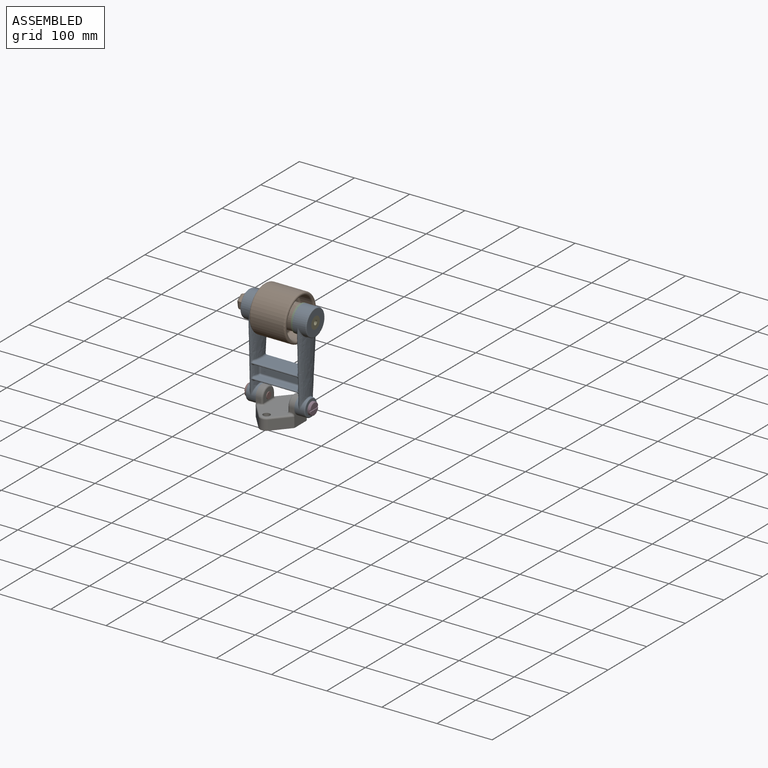
[diagram: assembled view]
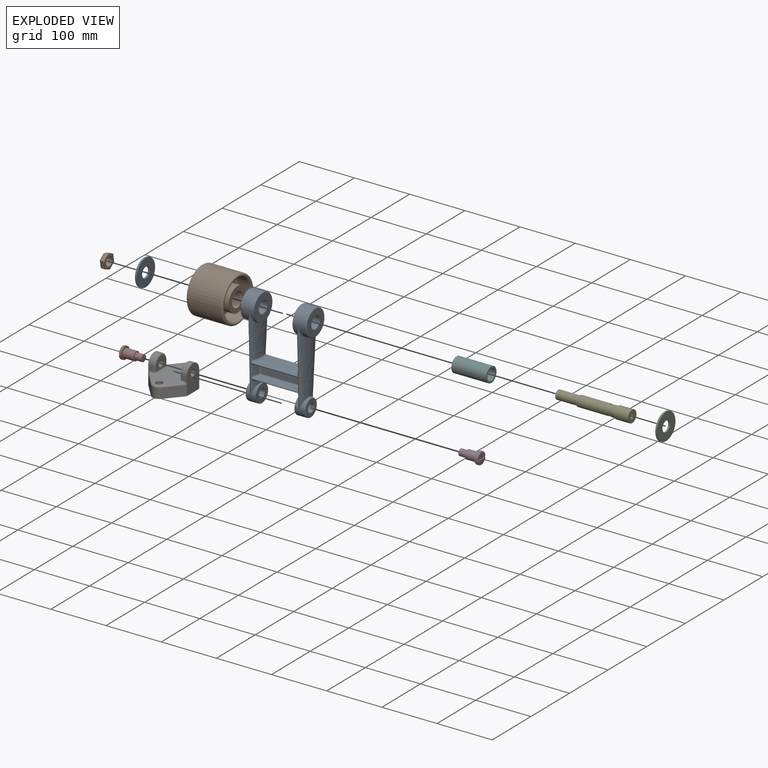
[diagram: exploded view]
GUIDED TOUR — MATED ASSEMBLY (Onshape document 57320ba3e4b0c309246d206c, AutoMate assembly 57320ba3e4b0c309246d206c_12dce975a0e8059eccebc991_d1e6be0f16bb16d82fe789ac_default)

This assembly has 10 components, labeled P0..P9 below (a component is one placed occurrence of a part; the same part can appear more than once), held together by 9 mates. A mate is a constraint between two components; its type names the relative motion it leaves free:
  FASTENED — locks the two components together rigidly (no relative motion),
  REVOLUTE — leaves rotation about the listed axis free (a hinge).
Axis/direction vectors are unit vectors and 'through' points are millimeter coordinates, both in the assembly's world frame.

MATES
  1. REVOLUTE "Revolute 1": P7 <-> P8, axis (-1.000, 0.000, 0.000) through (-33.93, 37.71, 30.65) mm
  2. REVOLUTE "Revolute 2": P9 <-> P5, axis (-1.000, 0.000, 0.000) through (33.07, 40.81, 170.61) mm
  3. REVOLUTE "Revolute 3": P2 <-> P9, axis (-1.000, 0.000, 0.000) through (33.07, 40.81, 170.61) mm
  4. REVOLUTE "Revolute 6": P4 <-> P8, axis (-1.000, 0.000, 0.000) through (61.07, 40.81, 170.61) mm
  5. FASTENED "Fastened 3": P1 <-> P4, direction (1.000, 0.000, 0.000) through (-72.93, 40.81, 170.61) mm
  6. FASTENED "Fastened 1": P7 <-> P6, direction (1.000, 0.000, 0.000) through (-33.93, 37.71, 30.65) mm
  7. REVOLUTE "Revolute 5": P2 <-> P8, axis (1.000, 0.000, 0.000) through (36.07, 40.81, 170.61) mm
  8. FASTENED "Fastened 2": P3 <-> P6, direction (-1.000, 0.000, 0.000) through (36.07, 37.71, 30.65) mm
  9. REVOLUTE "Revolute 4": P0 <-> P9, axis (1.000, 0.000, 0.000) through (-29.93, 40.81, 170.61) mm

ASSEMBLY ORDER
  1. P8 — the base component [order heuristic]
  2. P2 — core [order heuristic]
  3. P4 — core [order heuristic]
  4. P7 — core [order heuristic]
  5. P6 — core [order heuristic]
  6. P5 — core [order heuristic]
  7. P9 — core [order heuristic]
  8. P0 — core [order heuristic]
  9. P1 [order verified]
  10. P3 [order verified]
Order-tag legend:
  [order verified] — this step's position reverses a verified removal order: the component was checked to insert without passing through the ones already placed.
  [order heuristic] — the first 8 components form the assembly's core: parts whose collision-free extraction could not be verified, listed in mate-graph order.

Of the 10 components, 5 carry the full construction recipe — the FeatureScript program that regenerates the part's solid from scratch; the rest are supplied as boundary geometry only.
Each toured component is shown spotlighted twice — in the assembled view, then in the exploded view, where a leader line traces a displaced component back to its assembled socket (saturated green if recipe-attached, orange if geometry-only; every other component desaturated gray) — followed by its recipe or geometry summary and the mates that hold it.
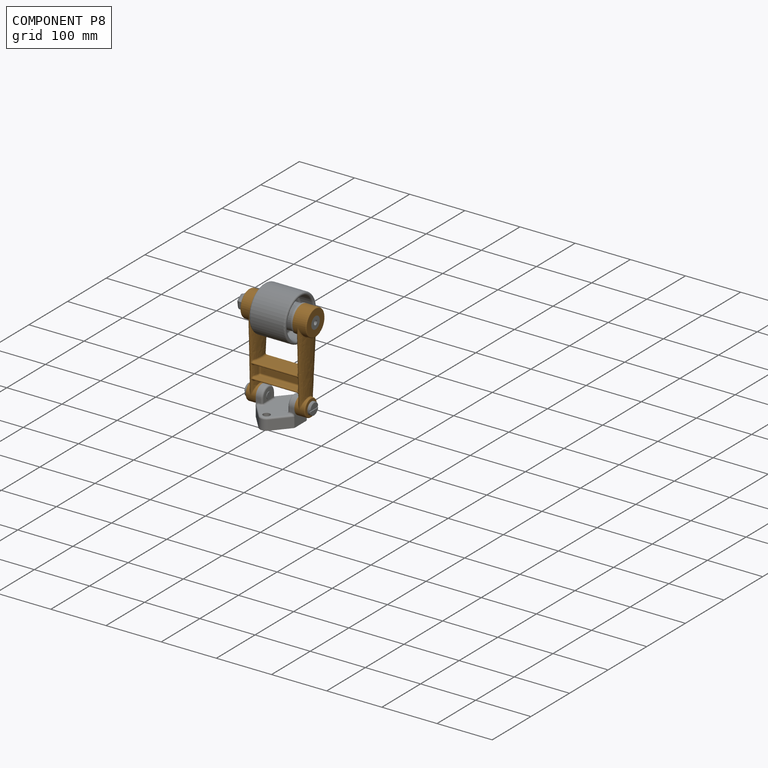
[diagram: component P8 — assembled]
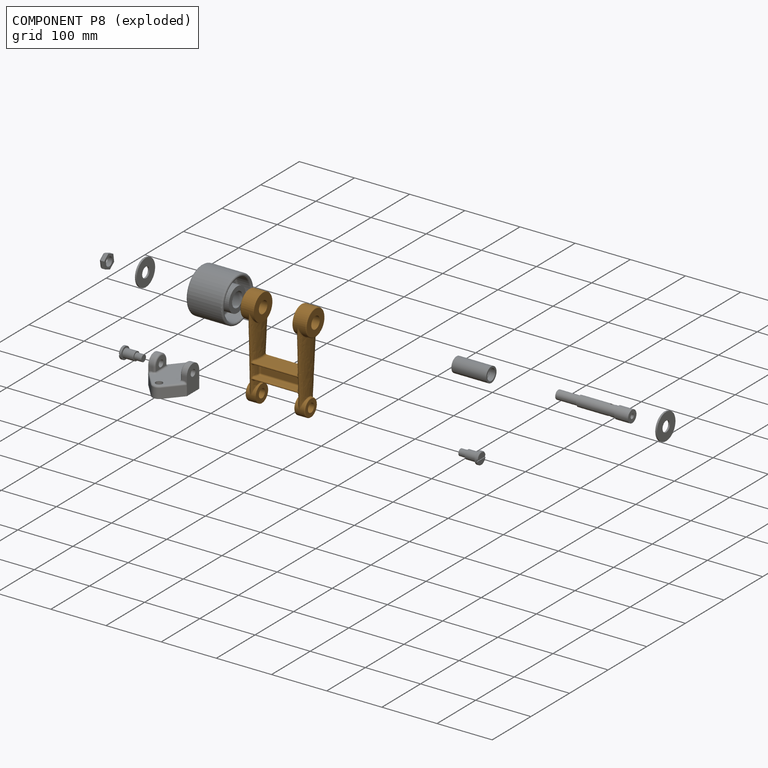
[diagram: component P8 — exploded]
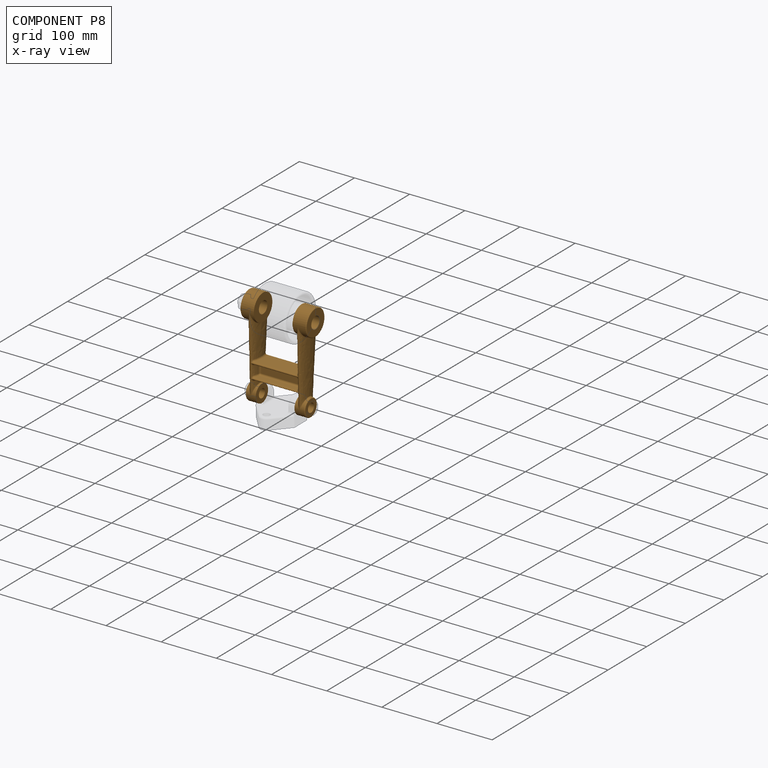
[diagram: component P8 — x-ray view]
COMPONENT P8 — geometry summary (no construction recipe available for this part):
  bounding box: 183.3 x 120.0 x 52.0 mm
  B-rep topology: 1 solid, 86 faces, 408 edges
  volume: 200852 mm^3 (18% of its bounding box)
  symmetry: 2-fold rotationally symmetric about the z axis; mirror-symmetric across its x mid-plane, y mid-plane
Held by: REVOLUTE mate "Revolute 1" to P7; REVOLUTE mate "Revolute 6" to P4; REVOLUTE mate "Revolute 5" to P2.
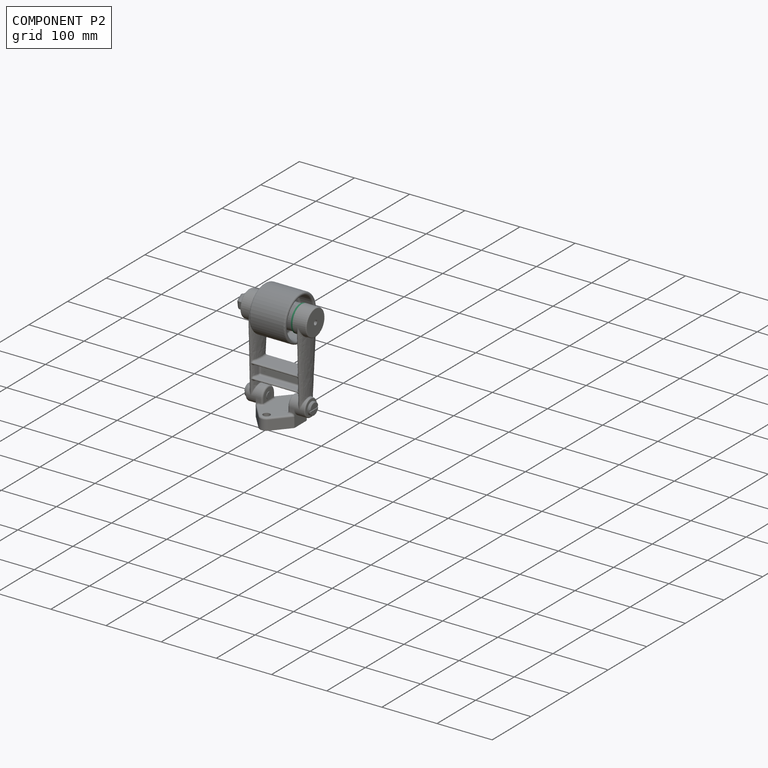
[diagram: component P2 — assembled]
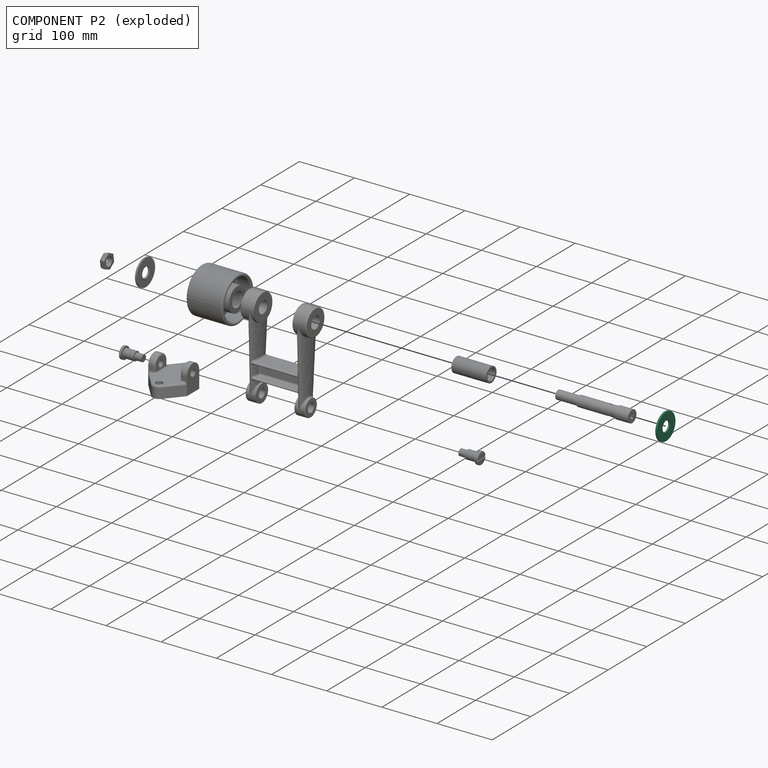
[diagram: component P2 — exploded]
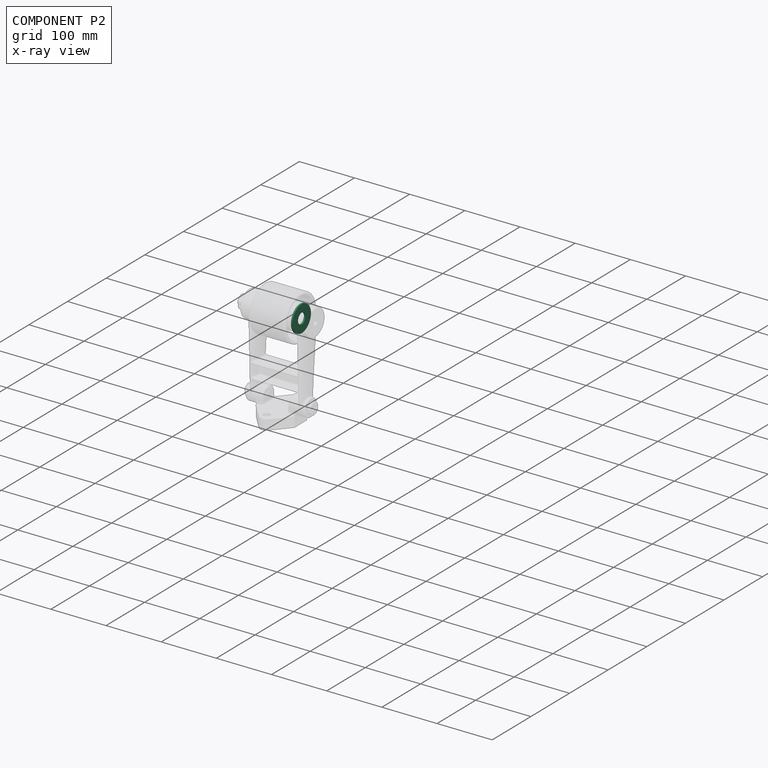
[diagram: component P2 — x-ray view]
COMPONENT P2 — same part as P0 (CADFS 00144085); its construction recipe is shown at P0.
Held by: REVOLUTE mate "Revolute 3" to P9; REVOLUTE mate "Revolute 5" to P8.
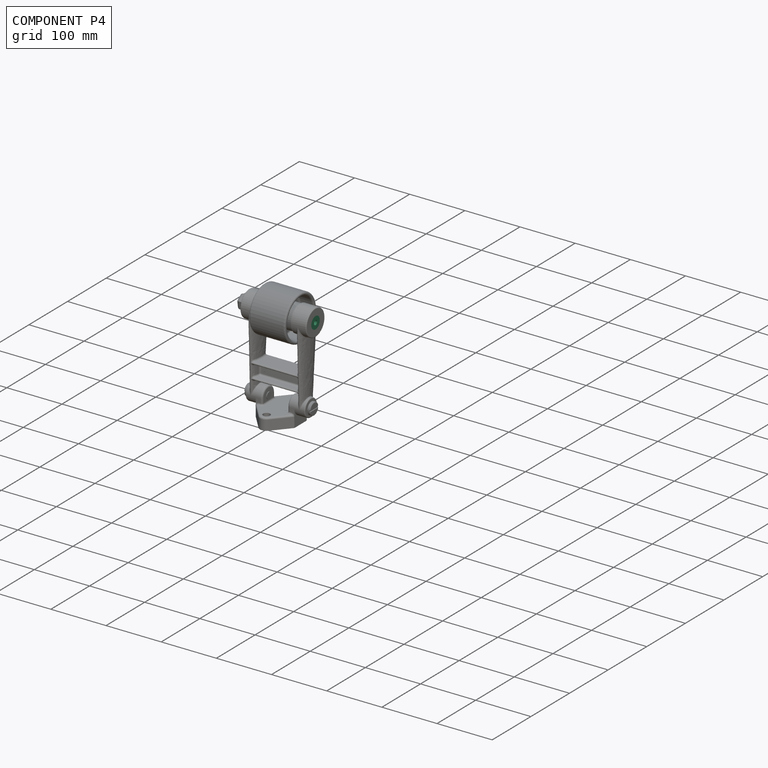
[diagram: component P4 — assembled]
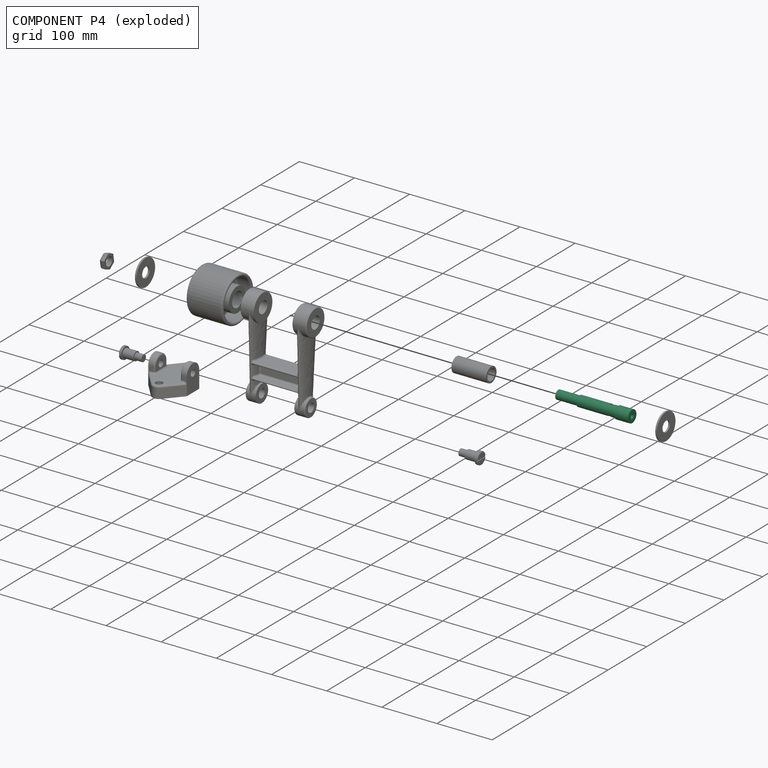
[diagram: component P4 — exploded]
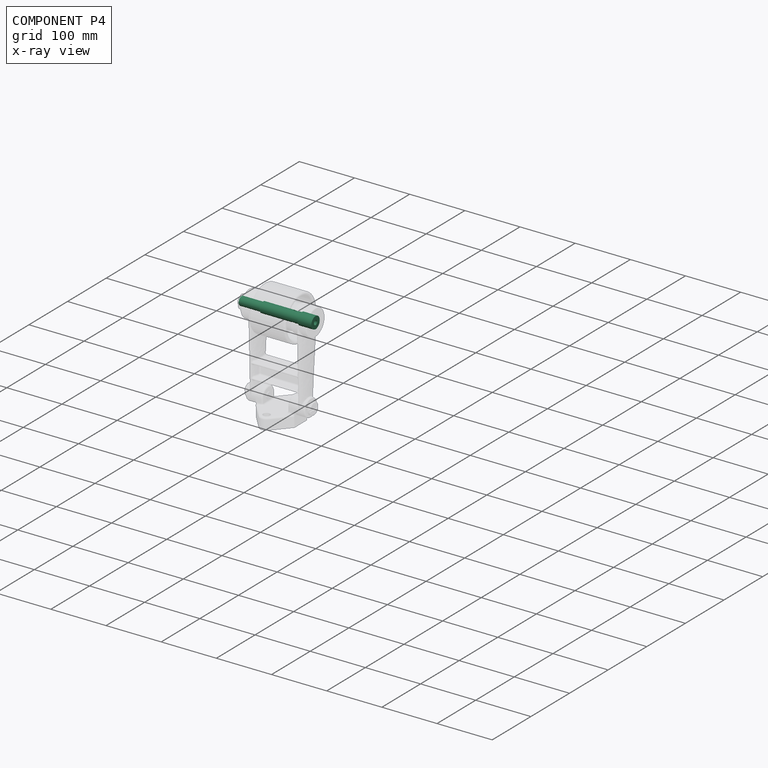
[diagram: component P4 — x-ray view]
COMPONENT P4 — recipe-attached (CADFS 00150792, mesh-verified: the recipe's output STEP matches this component's geometry to below the mesh-comparison resolution (tessellation chordal tolerance ~0.206 mm)).
Held by: REVOLUTE mate "Revolute 6" to P8; FASTENED mate "Fastened 3" to P1.
Construction recipe (FeatureScript — the CAD program that rebuilds this solid; sketch coordinates are in the units given by the * unit suffixes, e.g. mm):

FeatureScript 1511;
import(path : "onshape/std/geometry.fs", version : "1511.0");
import(path : "onshape/std/common.fs", version : "1511.0");
const mm = millimeter;
const VERTEX = EntityType.VERTEX;
const EDGE = EntityType.EDGE;
const FACE = EntityType.FACE;
const BODY = EntityType.BODY;
function v(x, y){return vector(x, y);}
function OD(order){return orderDisambiguation(order);}
function OSD(set){return originalSetDisambiguation(set);}
function TD(topology){return topologyDisambiguation(topology);}
function TDD(query){return trueDependencyDisambiguation(query);}
function sQuery(a, b, c) {return sketchEntityQuery(a, b, c);}

annotation { "Feature Type Name" : "Feature", "Feature Type Description" : "" }
export const myFeature = defineFeature(function(context is Context, id is Id, definition is map)
    precondition{}
    {
        {
            var Q0;
            Q0=qCreatedBy(makeId("Right.planeOp"),FACE);
            var sketch = newSketch(context, id + "F0", { "sketchPlane" : qUnion([Q0])});
            skCircle(sketch, "E0", {"center": v(0, 0) * mm, "radius": 4.15 * mm});
            skCircle(sketch, "E1", {"center": v(0, 0) * mm, "radius": 11 * mm});
            skSolve(sketch);
        }
        {
            var Q0;
            Q0=qSketchRegion(id+"F0",true);
            extrude(context, id + "F1", {"entities" : qUnion([Q0]), "oppositeDirection" : true, "depth" : 25 * mm});
        }
        {
            var Q0;
            Q0=makeQuery(id+"F1.opExtrude","CAP_FACE",FACE,{"disambiguationData":[OSD([sQuery(id+"F0.wireOp",EDGE,"E0"),sQuery(id+"F0.wireOp",EDGE,"E1")])],"isStart":true});
            var sketch = newSketch(context, id + "F2", { "sketchPlane" : qUnion([Q0])});
            skCircle(sketch, "E2", {"center": v(0, 0) * mm, "radius": 9.5 * mm});
            skSolve(sketch);
        }
        {
            var Q0;
            Q0=qSketchRegion(id+"F2",true);
            extrude(context, id + "F3", {"entities" : qUnion([Q0]), "operationType" : NewBodyOperationType.ADD, "depth" : 70 * mm});
        }
        {
            var Q0;
            Q0=qCreatedBy(makeId("Origin.pointOp"),VERTEX);
            var Q1;
            Q1=qCreatedBy(makeId("Top.planeOp"),FACE);
            cPlane(context, id + "F4", {"entities" : qUnion([Q0, Q1]), "cplaneType" : CPlaneType.PLANE_POINT, "offset" : 25 * mm, "width" : 150 * mm, "height" : 150 * mm});
        }
        {
            var Q0;
            Q0=qCreatedBy(id+"F4.planeOp",FACE);
            var sketch = newSketch(context, id + "F5", { "sketchPlane" : qUnion([Q0])});
            skCircle(sketch, "E3", {"center": v(12, 0) * mm, "radius": 4.15 * mm});
            skSolve(sketch);
        }
        {
            var Q0;
            Q0=qSketchRegion(id+"F5",true);
            extrude(context, id + "F6", {"entities" : qUnion([Q0]), "operationType" : NewBodyOperationType.REMOVE, "endBound" : BoundingType.THROUGH_ALL, "oppositeDirection" : true, "depth" : 25 * mm, "hasSecondDirection" : true, "secondDirectionBound" : SecondDirectionBoundingType.THROUGH_ALL, "secondDirectionOppositeDirection" : false, "secondDirectionDepth" : 25 * mm});
        }
        {
            var Q0;
            Q0=makeQuery(id+"F3.opExtrude","CAP_FACE",FACE,{"disambiguationData":[OSD([sQuery(id+"F2.wireOp",EDGE,"E2")])],"isStart":false});
            var sketch = newSketch(context, id + "F7", { "sketchPlane" : qUnion([Q0])});
            skCircle(sketch, "E4", {"center": v(0, 0) * mm, "radius": 8 * mm});
            skSolve(sketch);
        }
        {
            var Q0;
            Q0=qSketchRegion(id+"F7",true);
            extrude(context, id + "F8", {"entities" : qUnion([Q0]), "operationType" : NewBodyOperationType.ADD, "depth" : 39 * mm});
        }
        {
            var Q0;
            Q0=makeQuery(id+"F3.opExtrude","CAP_FACE",FACE,{"disambiguationData":[OSD([sQuery(id+"F2.wireOp",EDGE,"E2")])],"isStart":true});
            extrude(context, id + "F9", {"entities" : qUnion([Q0]), "operationType" : NewBodyOperationType.REMOVE, "oppositeDirection" : true, "depth" : 19 * mm});
        }
    });
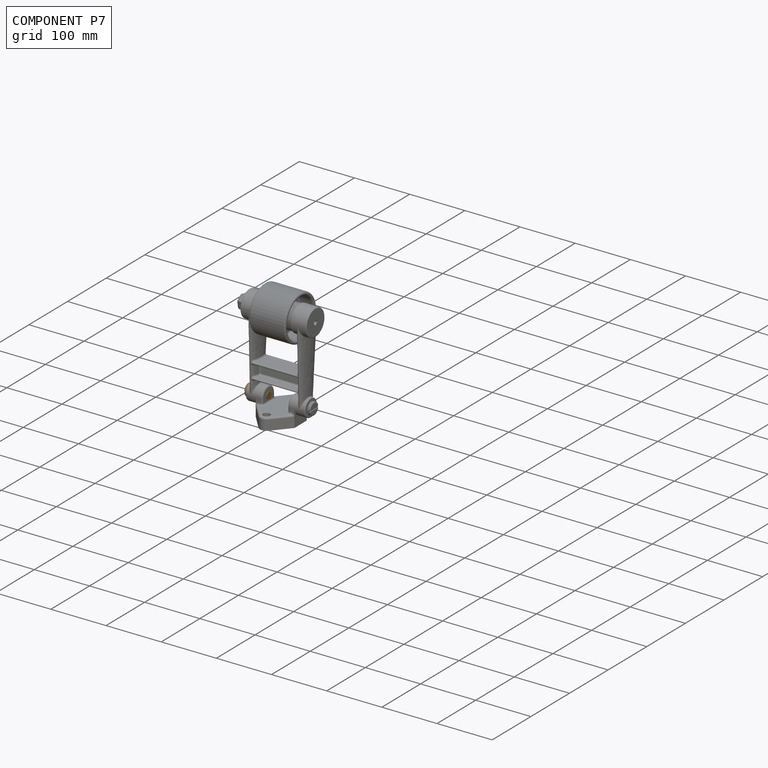
[diagram: component P7 — assembled]
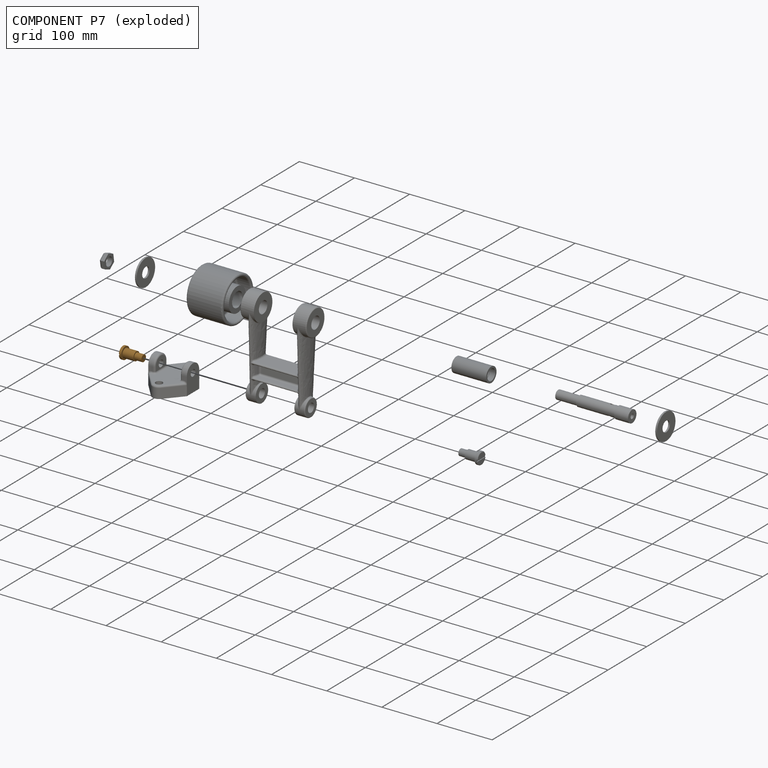
[diagram: component P7 — exploded]
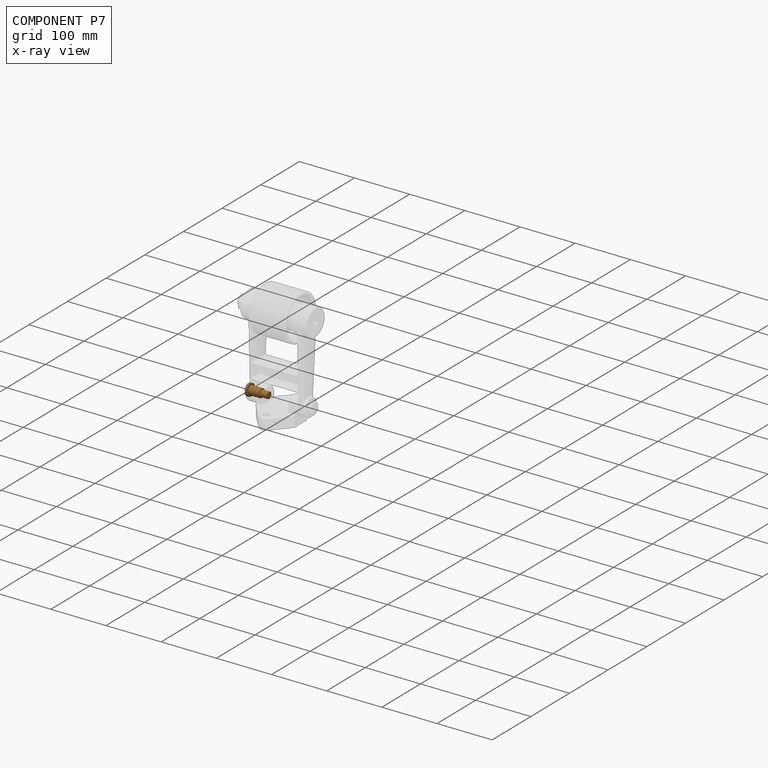
[diagram: component P7 — x-ray view]
COMPONENT P7 — geometry summary (no construction recipe available for this part):
  bounding box: 38.0 x 23.8 x 23.6 mm
  B-rep topology: 1 solid, 13 faces, 46 edges
  volume: 7264 mm^3 (34% of its bounding box)
  symmetry: 2-fold rotationally symmetric about the x axis; mirror-symmetric across its y mid-plane, z mid-plane
Held by: REVOLUTE mate "Revolute 1" to P8; FASTENED mate "Fastened 1" to P6.
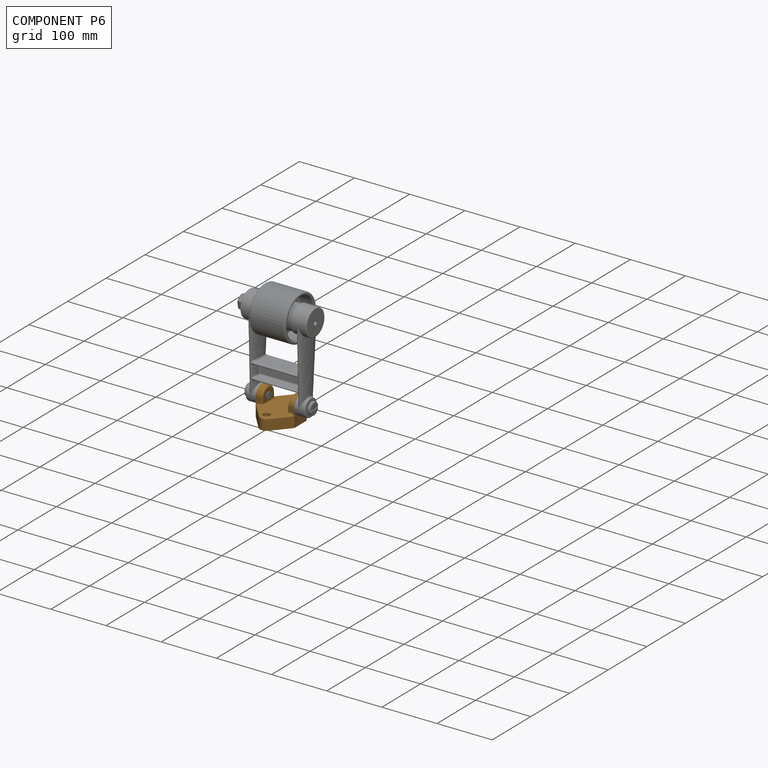
[diagram: component P6 — assembled]
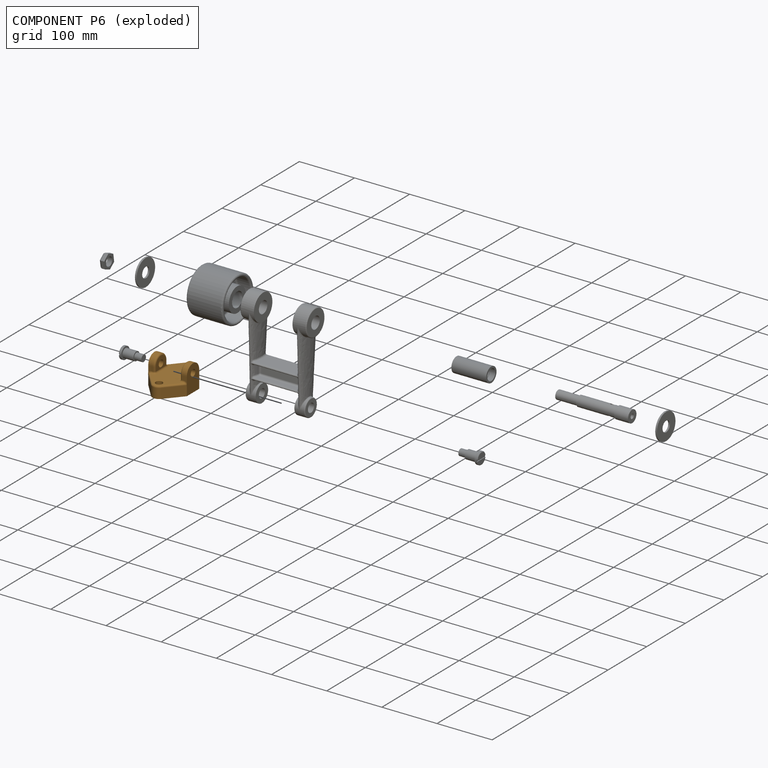
[diagram: component P6 — exploded]
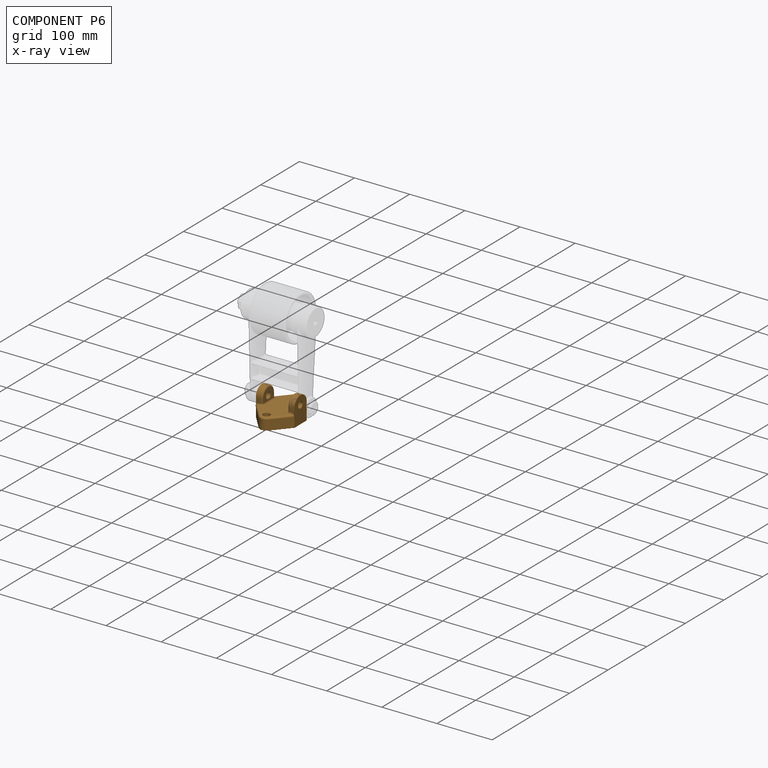
[diagram: component P6 — x-ray view]
COMPONENT P6 — geometry summary (no construction recipe available for this part):
  bounding box: 102.0 x 72.7 x 49.3 mm
  B-rep topology: 1 solid, 48 faces, 236 edges
  volume: 114271 mm^3 (31% of its bounding box)
  symmetry: 2-fold rotationally symmetric about the z axis; mirror-symmetric across its x mid-plane, y mid-plane
Held by: FASTENED mate "Fastened 1" to P7; FASTENED mate "Fastened 2" to P3.
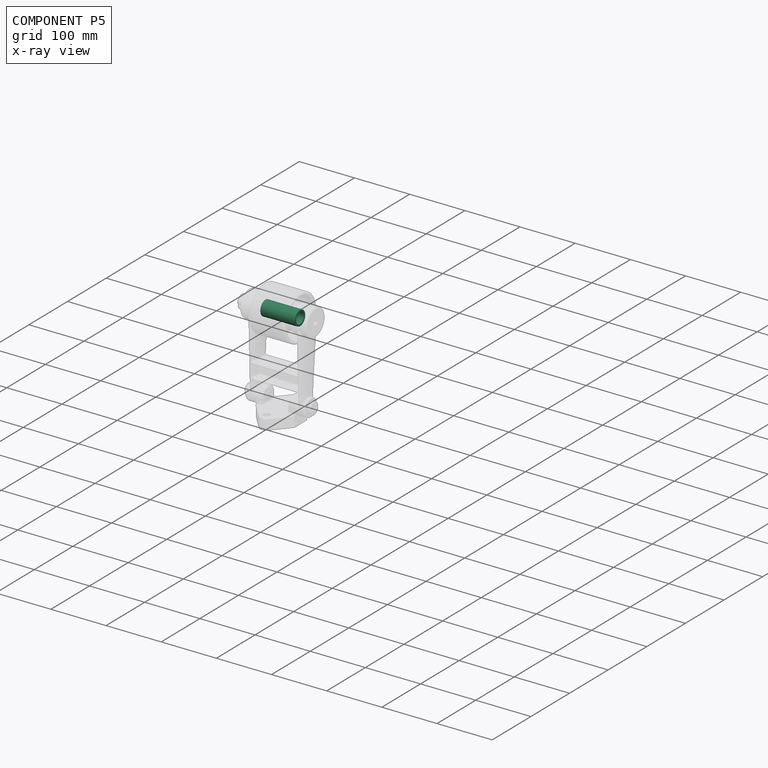
[diagram: component P5 — x-ray view]
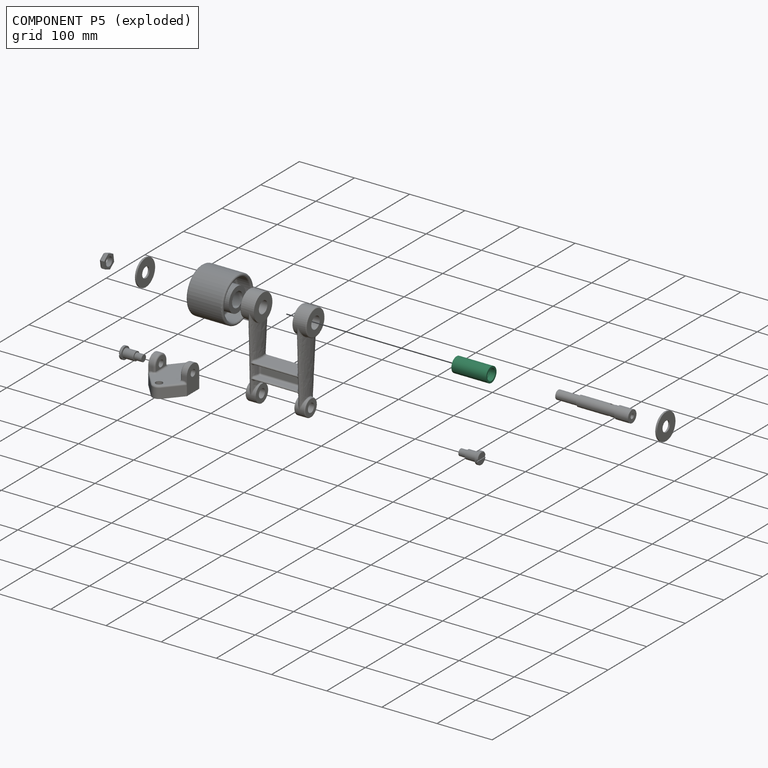
[diagram: component P5 — exploded]
COMPONENT P5 — recipe-attached (CADFS 00150793, mesh-verified: the recipe's output STEP matches this component's geometry to below the mesh-comparison resolution (tessellation chordal tolerance ~0.11 mm)).
Held by: REVOLUTE mate "Revolute 2" to P9.
Construction recipe (FeatureScript — the CAD program that rebuilds this solid; sketch coordinates are in the units given by the * unit suffixes, e.g. mm):

FeatureScript 1511;
import(path : "onshape/std/geometry.fs", version : "1511.0");
import(path : "onshape/std/common.fs", version : "1511.0");
const mm = millimeter;
const VERTEX = EntityType.VERTEX;
const EDGE = EntityType.EDGE;
const FACE = EntityType.FACE;
const BODY = EntityType.BODY;
function v(x, y){return vector(x, y);}
function OD(order){return orderDisambiguation(order);}
function OSD(set){return originalSetDisambiguation(set);}
function TD(topology){return topologyDisambiguation(topology);}
function TDD(query){return trueDependencyDisambiguation(query);}
function sQuery(a, b, c) {return sketchEntityQuery(a, b, c);}

annotation { "Feature Type Name" : "Feature", "Feature Type Description" : "" }
export const myFeature = defineFeature(function(context is Context, id is Id, definition is map)
    precondition{}
    {
        {
            var Q0;
            Q0=qCreatedBy(makeId("Right.planeOp"),FACE);
            var sketch = newSketch(context, id + "F0", { "sketchPlane" : qUnion([Q0])});
            skCircle(sketch, "E0", {"center": v(0, 0) * mm, "radius": 13.45 * mm});
            skCircle(sketch, "E1", {"center": v(0, 0) * mm, "radius": 9.5 * mm});
            skSolve(sketch);
        }
        {
            var Q0;
            Q0=qSketchRegion(id+"F0",true);
            extrude(context, id + "F1", {"entities" : qUnion([Q0]), "oppositeDirection" : true, "depth" : 63 * mm});
        }
        {
            var Q0;
            Q0=qCreatedBy(makeId("Front.planeOp"),FACE);
            var sketch = newSketch(context, id + "F2", { "sketchPlane" : qUnion([Q0])});
            skLineSegment(sketch, "E2.0", {"start": v(-63, 13.45) * mm, "end": v(-63, -13.45) * mm, "construction": true});
            skLineSegment(sketch, "E3", {"start": v(-63, 13.45) * mm, "end": v(0, 13.45) * mm, "construction": true});
            skLineSegment(sketch, "E4.0", {"start": v(0, 13.45) * mm, "end": v(0, -13.45) * mm, "construction": true});
            skLineSegment(sketch, "E5", {"start": v(0, 9.38) * mm, "end": v(0, 10.18) * mm});
            skLineSegment(sketch, "E6", {"start": v(0, 10.18) * mm, "end": v(-10, 10.18) * mm});
            skLineSegment(sketch, "E7", {"start": v(-10, 10.18) * mm, "end": v(-10, 9.38) * mm});
            skLineSegment(sketch, "E8", {"start": v(-10, 9.38) * mm, "end": v(0, 9.38) * mm});
            skLineSegment(sketch, "E9", {"start": v(0.87, 9.38) * mm, "end": v(-67.94, 9.38) * mm, "construction": true});
            skSolve(sketch);
        }
        {
            var Q0;
            Q0=qSketchRegion(id+"F2",true);
            var Q1;
            Q1=makeQuery(id+"F1.opExtrude","SWEPT_FACE",FACE,{"disambiguationData":[OSD([sQuery(id+"F0.wireOp",EDGE,"E1")])]});
            revolve(context, id + "F3", {"operationType" : NewBodyOperationType.REMOVE, "entities" : qUnion([Q0]), "axis" : qUnion([Q1]), "revolveType" : RevolveType.FULL, "oppositeDirection" : true});
        }
    });
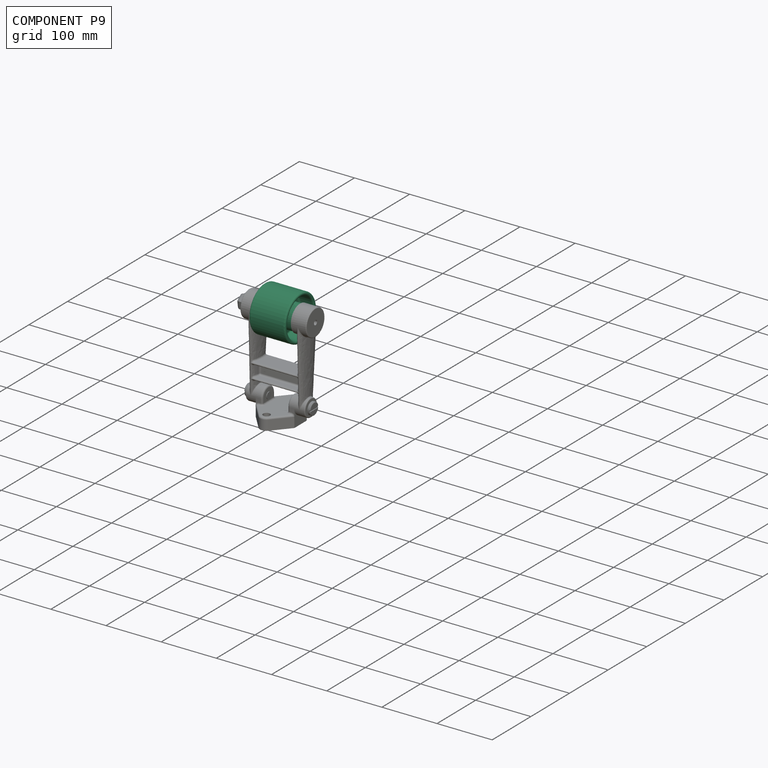
[diagram: component P9 — assembled]
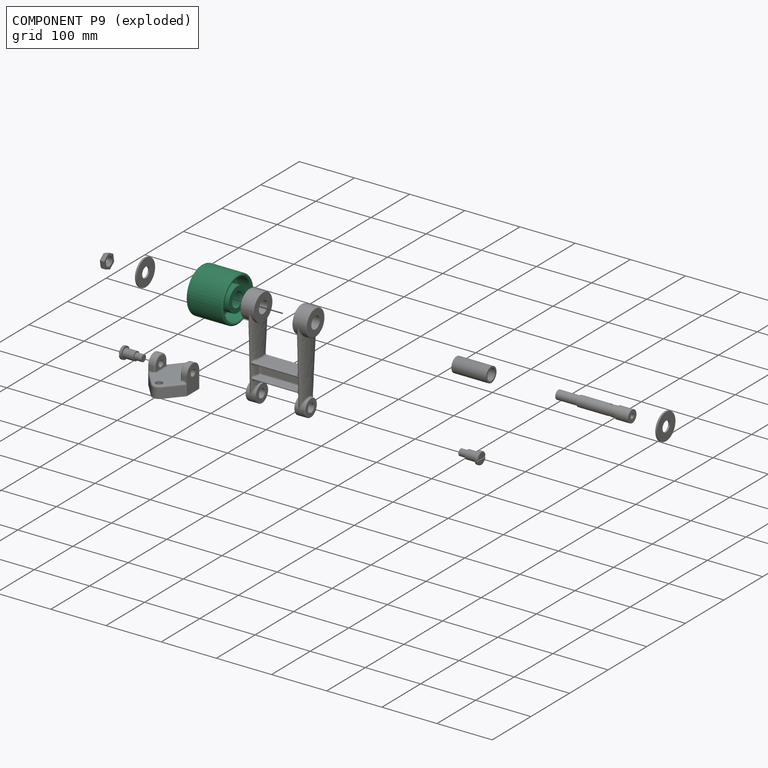
[diagram: component P9 — exploded]
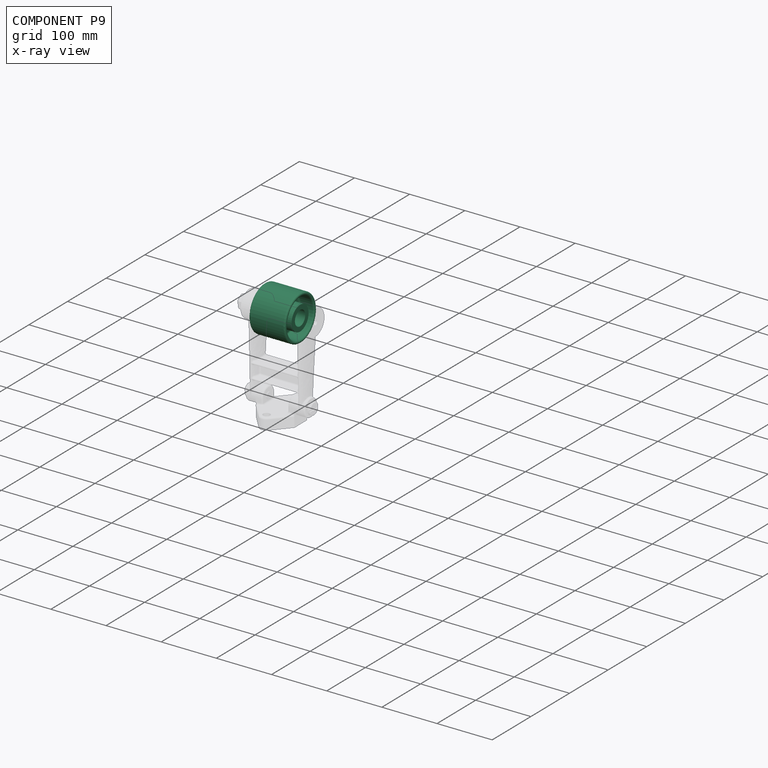
[diagram: component P9 — x-ray view]
COMPONENT P9 — recipe-attached (CADFS 00144080, mesh-verified: the recipe's output STEP matches this component's geometry to below the mesh-comparison resolution (tessellation chordal tolerance ~0.2 mm)).
Held by: REVOLUTE mate "Revolute 2" to P5; REVOLUTE mate "Revolute 3" to P2; REVOLUTE mate "Revolute 4" to P0.
Construction recipe (FeatureScript — the CAD program that rebuilds this solid; sketch coordinates are in the units given by the * unit suffixes, e.g. mm):

FeatureScript 1511;
import(path : "onshape/std/geometry.fs", version : "1511.0");
import(path : "onshape/std/common.fs", version : "1511.0");
const mm = millimeter;
const VERTEX = EntityType.VERTEX;
const EDGE = EntityType.EDGE;
const FACE = EntityType.FACE;
const BODY = EntityType.BODY;
function v(x, y){return vector(x, y);}
function OD(order){return orderDisambiguation(order);}
function OSD(set){return originalSetDisambiguation(set);}
function TD(topology){return topologyDisambiguation(topology);}
function TDD(query){return trueDependencyDisambiguation(query);}
function sQuery(a, b, c) {return sketchEntityQuery(a, b, c);}

annotation { "Feature Type Name" : "Feature", "Feature Type Description" : "" }
export const myFeature = defineFeature(function(context is Context, id is Id, definition is map)
    precondition{}
    {
        {
            var Q0;
            Q0=qCreatedBy(makeId("Front.planeOp"),FACE);
            var sketch = newSketch(context, id + "F0", { "sketchPlane" : qUnion([Q0])});
            skLineSegment(sketch, "E0", {"start": v(31.5, 0) * mm, "end": v(31.5, 8.55) * mm});
            skLineSegment(sketch, "E1", {"start": v(31.5, 8.55) * mm, "end": v(9, 8.55) * mm});
            skLineSegment(sketch, "E2", {"start": v(9, 21.55) * mm, "end": v(30, 21.55) * mm});
            skLineSegment(sketch, "E3", {"start": v(30, 27.55) * mm, "end": v(-30, 27.55) * mm});
            skLineSegment(sketch, "E4", {"start": v(-31.5, 0) * mm, "end": v(-31.5, 8.55) * mm});
            skLineSegment(sketch, "E5", {"start": v(-31.5, 8.55) * mm, "end": v(-9, 8.55) * mm});
            skLineSegment(sketch, "E6", {"start": v(-9, 21.55) * mm, "end": v(-30, 21.55) * mm});
            skArc(sketch, "E7", {"start": v(-30, 27.55) * mm, "mid": v(-33, 24.55) * mm, "end": v(-30, 21.55) * mm});
            skArc(sketch, "E8", {"start": v(30, 21.55) * mm, "mid": v(33, 24.55) * mm, "end": v(30, 27.55) * mm});
            skLineSegment(sketch, "E9", {"start": v(-31.5, 0) * mm, "end": v(31.5, 0) * mm});
            skLineSegment(sketch, "E10", {"start": v(-25, -13.45) * mm, "end": v(65.42, -13.45) * mm, "construction": true});
            skLineSegment(sketch, "E11", {"start": v(-6, 11.55) * mm, "end": v(-6, 18.55) * mm});
            skLineSegment(sketch, "E12", {"start": v(6, 11.55) * mm, "end": v(6, 18.55) * mm});
            skArc(sketch, "E13", {"start": v(-9, 8.55) * mm, "mid": v(-6.88, 9.43) * mm, "end": v(-6, 11.55) * mm});
            skArc(sketch, "E14", {"start": v(6, 11.55) * mm, "mid": v(6.88, 9.43) * mm, "end": v(9, 8.55) * mm});
            skArc(sketch, "E15", {"start": v(-6, 18.55) * mm, "mid": v(-6.88, 20.67) * mm, "end": v(-9, 21.55) * mm});
            skLineSegment(sketch, "E16", {"start": v(0, 0) * mm, "end": v(0, 27.55) * mm, "construction": true});
            skArc(sketch, "E17", {"start": v(9, 21.55) * mm, "mid": v(6.88, 20.67) * mm, "end": v(6, 18.55) * mm});
            skSolve(sketch);
        }
        {
            var Q0;
            Q0=makeQuery(id+"F0.imprint","IMPRINT",FACE,{"disambiguationData":[TD([[makeQuery(id+"F0.imprint","IMPRINT",EDGE,{"derivedFrom":sQuery(id+"F0.wireOp",EDGE,"E0")}),1.0]])]});
            var Q1;
            Q1=sQuery(id+"F0.wireOp",EDGE,"E10");
            revolve(context, id + "F1", {"entities" : qUnion([Q0]), "axis" : qUnion([Q1]), "revolveType" : RevolveType.FULL});
        }
    });
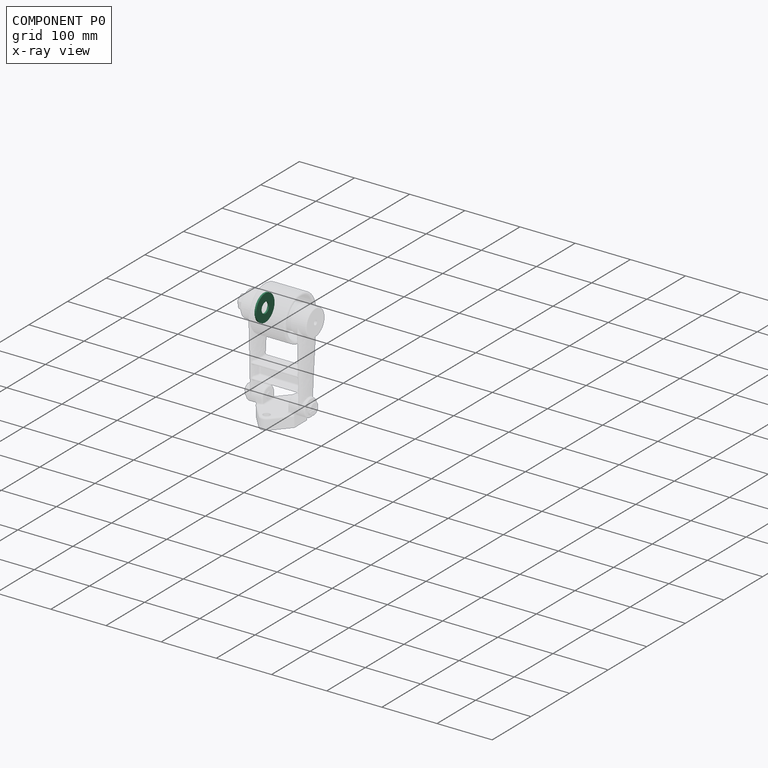
[diagram: component P0 — x-ray view]
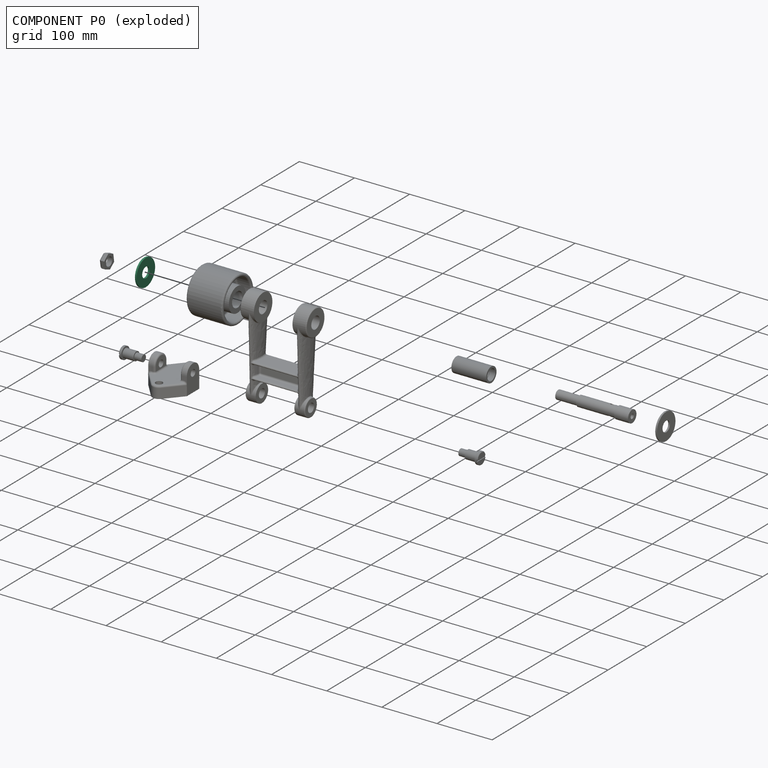
[diagram: component P0 — exploded]
COMPONENT P0 — recipe-attached (CADFS 00144085, mesh-verified: the recipe's output STEP matches this component's geometry to below the mesh-comparison resolution (tessellation chordal tolerance ~0.102 mm)).
Held by: REVOLUTE mate "Revolute 4" to P9.
Construction recipe (FeatureScript — the CAD program that rebuilds this solid; sketch coordinates are in the units given by the * unit suffixes, e.g. mm):

FeatureScript 1511;
import(path : "onshape/std/geometry.fs", version : "1511.0");
import(path : "onshape/std/common.fs", version : "1511.0");
const mm = millimeter;
const VERTEX = EntityType.VERTEX;
const EDGE = EntityType.EDGE;
const FACE = EntityType.FACE;
const BODY = EntityType.BODY;
function v(x, y){return vector(x, y);}
function OD(order){return orderDisambiguation(order);}
function OSD(set){return originalSetDisambiguation(set);}
function TD(topology){return topologyDisambiguation(topology);}
function TDD(query){return trueDependencyDisambiguation(query);}
function sQuery(a, b, c) {return sketchEntityQuery(a, b, c);}

annotation { "Feature Type Name" : "Feature", "Feature Type Description" : "" }
export const myFeature = defineFeature(function(context is Context, id is Id, definition is map)
    precondition{}
    {
        {
            var Q0;
            Q0=qCreatedBy(makeId("Front.planeOp"),FACE);
            var sketch = newSketch(context, id + "F0", { "sketchPlane" : qUnion([Q0])});
            skCircle(sketch, "E0", {"center": v(0, 0) * mm, "radius": 9.5 * mm});
            skCircle(sketch, "E1", {"center": v(0, 0) * mm, "radius": 24 * mm});
            skSolve(sketch);
        }
        {
            var Q0;
            Q0 = qSketchRegion(id + "F0", true);
            extrude(context, id + "F1", {"entities" : qUnion([Q0]), "depth" : 3 * mm});
        }
    });
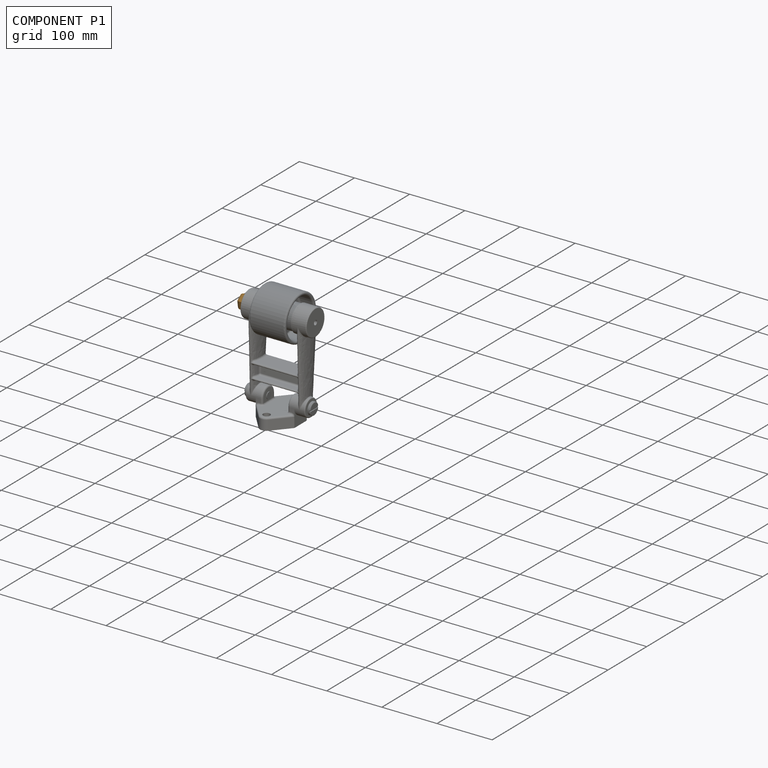
[diagram: component P1 — assembled]
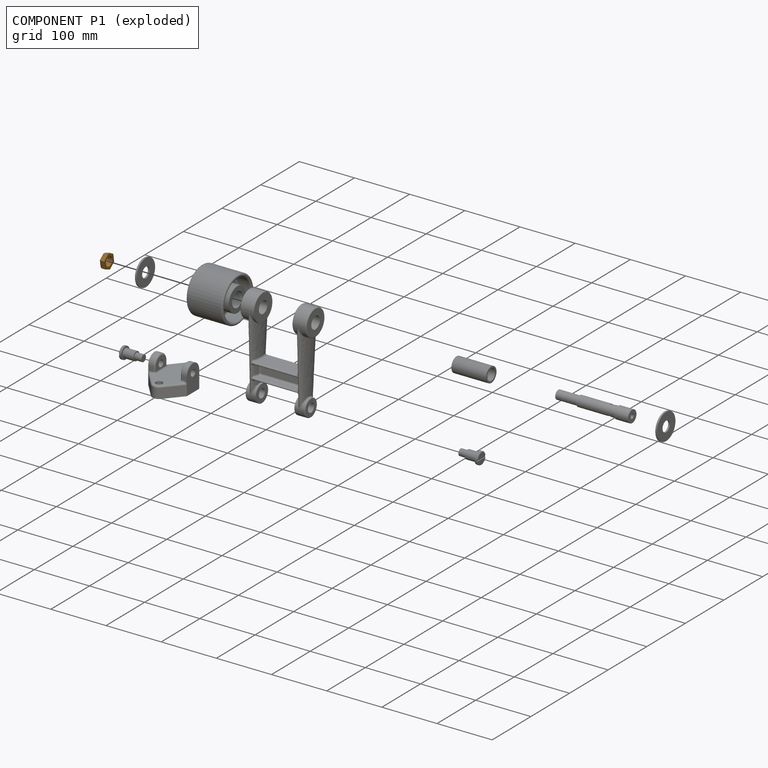
[diagram: component P1 — exploded]
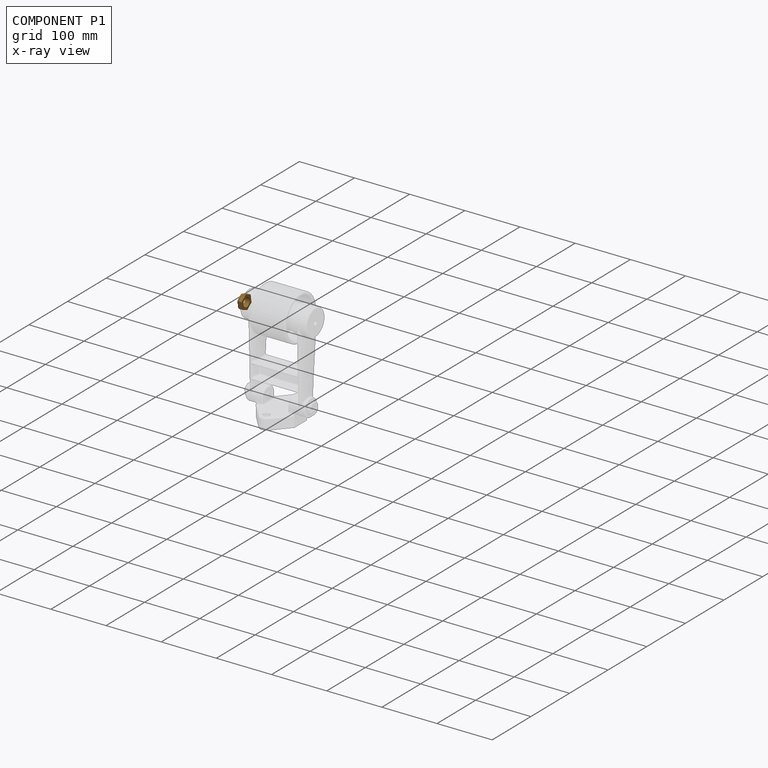
[diagram: component P1 — x-ray view]
COMPONENT P1 — geometry summary (no construction recipe available for this part):
  bounding box: 27.7 x 24.1 x 9.0 mm
  B-rep topology: 1 solid, 15 faces, 66 edges
  volume: 2474 mm^3 (41% of its bounding box)
  symmetry: 6-fold rotationally symmetric about the z axis; mirror-symmetric across its x mid-plane, y mid-plane
Held by: FASTENED mate "Fastened 3" to P4.
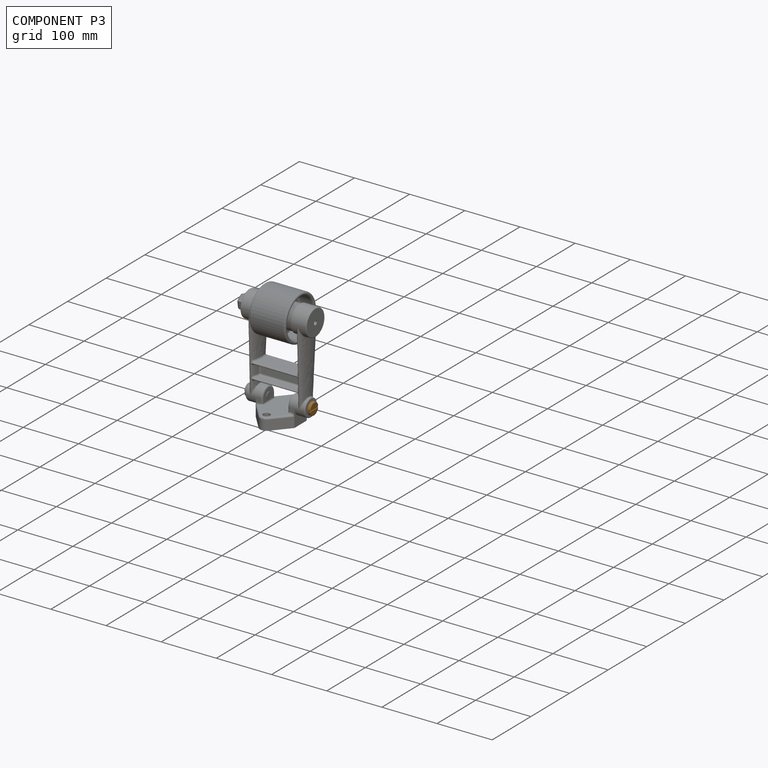
[diagram: component P3 — assembled]
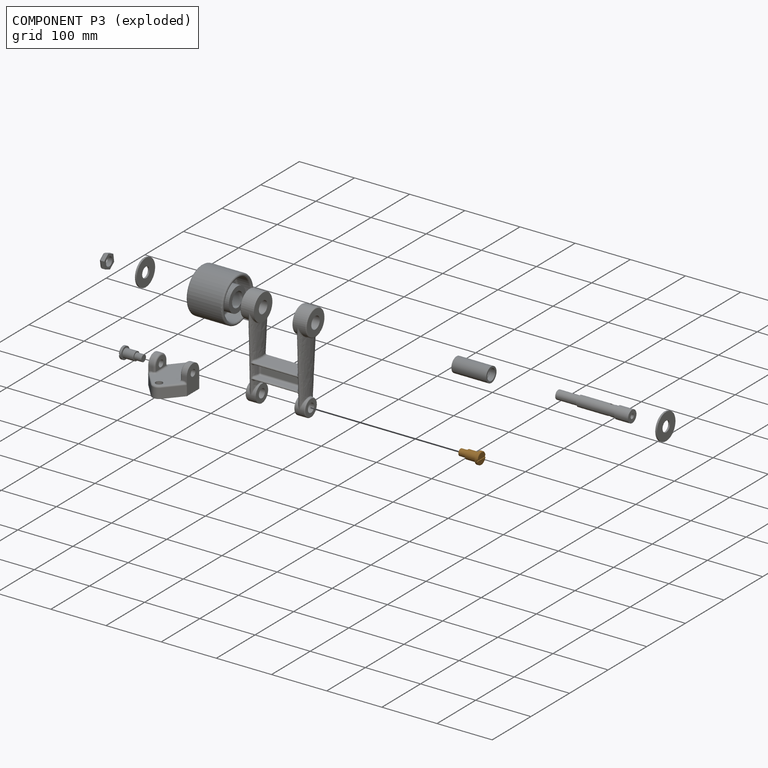
[diagram: component P3 — exploded]
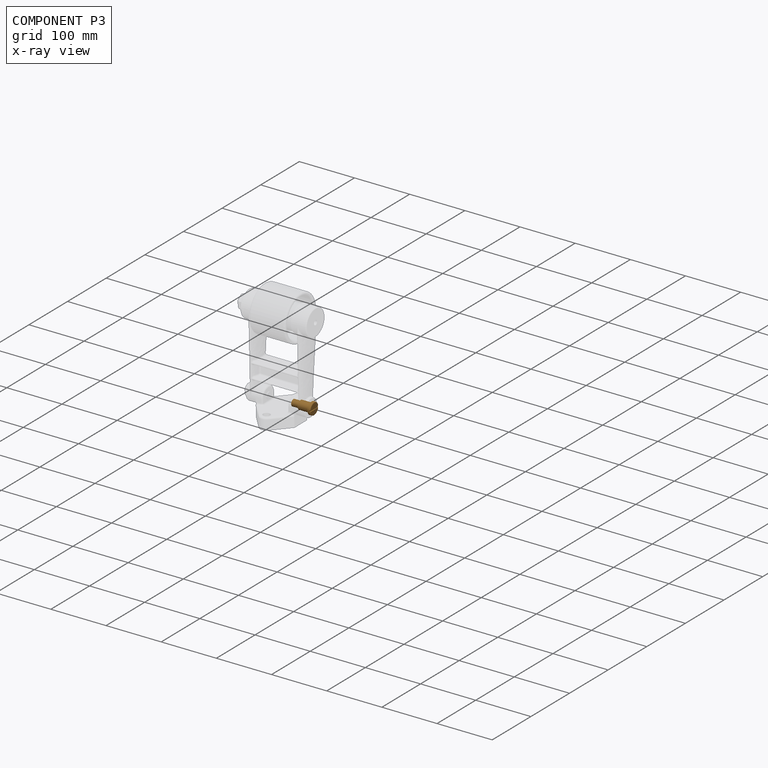
[diagram: component P3 — x-ray view]
COMPONENT P3 — geometry summary (no construction recipe available for this part):
  bounding box: 38.0 x 23.8 x 23.6 mm
  B-rep topology: 1 solid, 13 faces, 46 edges
  volume: 7264 mm^3 (34% of its bounding box)
  symmetry: 2-fold rotationally symmetric about the x axis; mirror-symmetric across its y mid-plane, z mid-plane
Held by: FASTENED mate "Fastened 2" to P6.
PROVENANCE & LICENSES
Assembly (occurrences, transforms, mates, per-part STEP geometry): AutoMate dataset, Zenodo record 7776208, CC0.
Construction recipes: CADFS (HuggingFace VladPyatov/CADFS, CC-BY-4.0, layered over the ABC dataset), FeatureScript reconstruction programs keyed by ABC model id.
Join: ABC meta listings map ABC model id -> Onshape documentId; within a shared document, parts are matched by geometric signature (bounding-box dims + volume at 0.1% relative tolerance, exact B-rep face/solid counts).
Verification: 5 of this assembly's 10 components carry a recipe attachment, and every attachment is mesh-verified: the CADFS STEP and the AutoMate member STEP were compared as meshes in their shared local frame (symmetric sampled-point-to-mesh distance); worst across the 5 attachments: below the mesh-comparison resolution (tessellation chordal tolerance ~0.206 mm) on a 138 mm part.
Renders: orthographic iso camera (az 35 / el 25); the floor grid conveys scale (grid pitch printed in each image; no ruler). In the exploded view each component is displaced by its stored offset vector: the offsets alone carry the explosion direction (mate normal/axis signs are not orientation cues and do not encode it), and separation distances are assigned per mate-chain, not proportionally to assembly-order depth.
